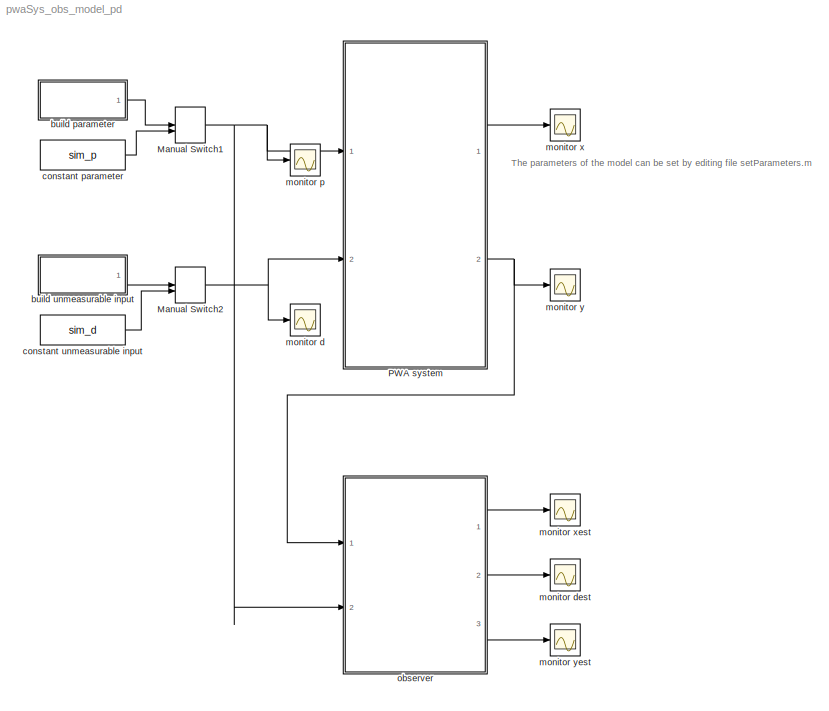
MODEL pwaSys_obs_model_pd
KIND model
CONFIG InitFcn = load simulink.mat\nsetParameters
CONFIG StartFcn = load simulink.mat\nsetParameters\nclear res_X res_U res_Y res_P res_D\nclear res_Xest res_Dest res_Yest
CONFIG StopFcn = plotScope
BLOCK [ManualSwitch] Manual Switch1
  CurrentSetting = 0
  SID = 31
BLOCK [ManualSwitch] Manual Switch2
  CurrentSetting = 0
  SID = 32
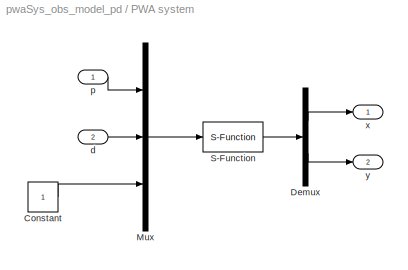
BLOCK [SubSystem] PWA system
  Ports = [2, 2]
  RequestExecContextInheritance = off
  SID = 5
  Variant = off
BLOCK [Constant] PWA system/Constant
  SID = 26
BLOCK [Demux] PWA system/Demux
  DisplayOption = bar
  Outputs = [sim_nx sim_ny]
  Ports = [1, 2]
  SID = 19
BLOCK [Mux] PWA system/Mux
  DisplayOption = bar
  Inputs = 3
  Ports = [3, 1]
  SID = 20
BLOCK [S-Function] PWA system/S-Function
  EnableBusSupport = off
  FunctionName = s_pwaSys_d
  Parameters = A,B,C,D,H,K,sim_x0,Ts
  Ports = [1, 1]
  SFunctionDeploymentMode = off
  SID = 74
BLOCK [Inport] PWA system/d
  IconDisplay = Port number
  Port = 2
  SID = 9
BLOCK [Inport] PWA system/p
  IconDisplay = Port number
  SID = 8
BLOCK [Outport] PWA system/x
  IconDisplay = Port number
  SID = 7
BLOCK [Outport] PWA system/y
  IconDisplay = Port number
  Port = 2
  SID = 10
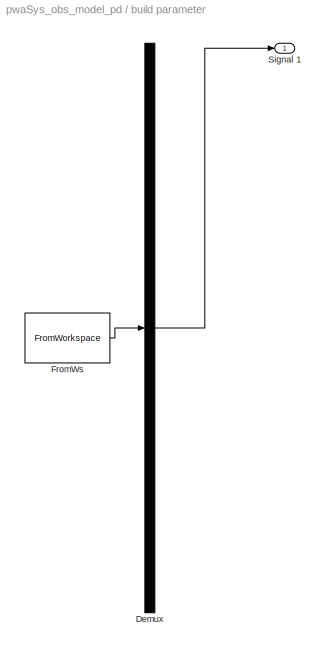
BLOCK [SubSystem] build parameter
  ClipboardFcn = sigbuilder_block('clipboard');
  CloseFcn = sigbuilder_block('close');
  ContinueFcn = sigbuilder_block('continue');
  CopyFcn = sigbuilder_block('copy');
  DeleteFcn = sigbuilder_block('delete');
  LoadFcn = sigbuilder_block('load');
  MaskHideContents = on
  ModelCloseFcn = sigbuilder_block('modelClose');
  NameChangeFcn = sigbuilder_block('namechange');
  OpenFcn = sigbuilder_block('open',[433.6 128 558.4 400.8 ]);
  PauseFcn = sigbuilder_block('pause');
  Ports = [0, 1]
  PreSaveFcn = sigbuilder_block('preSave');
  RequestExecContextInheritance = off
  SID = 12
  StartFcn = sigbuilder_block('start');
  StopFcn = sigbuilder_block('stop');
  Tag = STV Subsys
  Variant = off
BLOCK [Demux] build parameter/Demux
  Outputs = 1
  Ports = [1, 1]
  SID = 12:1
  Tag = STV Demux
BLOCK [FromWorkspace] build parameter/FromWs
  SID = 12:2
  SampleTime = 0
  SigBuilderData = DataTag0
  Tag = STV FromWs
  VariableName = tuvar
  VnvData = DataTag1
  ZeroCross = on
BLOCK [Outport] build parameter/Signal 1
  IconDisplay = Port number
  SID = 12:3
  Tag = STV Outport
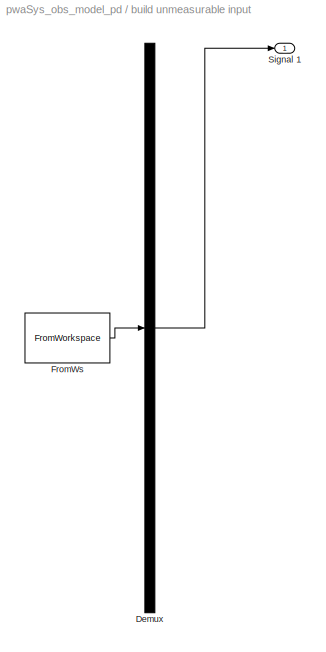
BLOCK [SubSystem] build unmeasurable input
  ClipboardFcn = sigbuilder_block('clipboard');
  CloseFcn = sigbuilder_block('close');
  ContinueFcn = sigbuilder_block('continue');
  CopyFcn = sigbuilder_block('copy');
  DeleteFcn = sigbuilder_block('delete');
  LoadFcn = sigbuilder_block('load');
  MaskHideContents = on
  ModelCloseFcn = sigbuilder_block('modelClose');
  NameChangeFcn = sigbuilder_block('namechange');
  OpenFcn = sigbuilder_block('open',[433.6 121.6 550.4 399.2 ]);
  PauseFcn = sigbuilder_block('pause');
  Ports = [0, 1]
  PreSaveFcn = sigbuilder_block('preSave');
  RequestExecContextInheritance = off
  SID = 13
  StartFcn = sigbuilder_block('start');
  StopFcn = sigbuilder_block('stop');
  Tag = STV Subsys
  Variant = off
BLOCK [Demux] build unmeasurable input/Demux
  Outputs = 1
  Ports = [1, 1]
  SID = 13:1
  Tag = STV Demux
BLOCK [FromWorkspace] build unmeasurable input/FromWs
  SID = 13:2
  SampleTime = 0
  SigBuilderData = DataTag2
  Tag = STV FromWs
  VariableName = tuvar
  VnvData = DataTag3
  ZeroCross = on
BLOCK [Outport] build unmeasurable input/Signal 1
  IconDisplay = Port number
  SID = 13:3
  Tag = STV Outport
BLOCK [Constant] constant parameter
  SID = 29
  Value = sim_p
BLOCK [Constant] constant unmeasurable input
  SID = 30
  Value = sim_d
BLOCK [Scope] monitor d
  Ports = [1]
  SID = 25
  ScopeSpecificationString = C++SS(StrPVP('Location','[188, 365, 502, 602]'),StrPVP('Open','off'),MxPVP('AxesTitles',24,'struct(''axes1'',''%<SignalLabel>'')'),MxPVP('ScopeGraphics',28,'struct(''FigureColor'',''[0.5 0.5 0.5]'',''AxesColor'',''[0 0 0]'',''AxesTickColor'',''[1 1 1]'',''LineColors'',''[1 1 0;1 0 1;0 1 1;1 0 0;0 1 0;0 0 1]'',''LineStyles'',''-|-|-|-|-|-'',''LineWidths'',''[0.5 0.5 0.5 0.5 0.5 0.5]'',''MarkerStyle...<+263ch>  <repeated x3 — deduplicated; at blocks: monitor d, monitor p, monitor y>
BLOCK [Scope] monitor dest
  Ports = [1]
  SID = 45
  ScopeSpecificationString = C++SS(StrPVP('Location','[188, 336, 502, 573]'),StrPVP('Open','off'),MxPVP('AxesTitles',24,'struct(''axes1'',''%<SignalLabel>'')'),MxPVP('ScopeGraphics',28,'struct(''FigureColor'',''[0.5 0.5 0.5]'',''AxesColor'',''[0 0 0]'',''AxesTickColor'',''[1 1 1]'',''LineColors'',''[1 1 0;1 0 1;0 1 1;1 0 0;0 1 0;0 0 1]'',''LineStyles'',''-|-|-|-|-|-'',''LineWidths'',''[0.5 0.5 0.5 0.5 0.5 0.5]'',''MarkerStyle...<+266ch>
BLOCK [Scope] monitor p
  Ports = [1]
  SID = 24
BLOCK [Scope] monitor x
  Ports = [1]
  SID = 16
  ScopeSpecificationString = C++SS(StrPVP('Location','[188, 364, 512, 603]'),StrPVP('Open','off'),MxPVP('AxesTitles',24,'struct(''axes1'',''%<SignalLabel>'')'),MxPVP('ScopeGraphics',28,'struct(''FigureColor'',''[0.5 0.5 0.5]'',''AxesColor'',''[0 0 0]'',''AxesTickColor'',''[1 1 1]'',''LineColors'',''[1 1 0;1 0 1;0 1 1;1 0 0;0 1 0;0 0 1]'',''LineStyles'',''-|-|-|-|-|-'',''LineWidths'',''[0.5 0.5 0.5 0.5 0.5 0.5]'',''MarkerStyle...<+263ch>
BLOCK [Scope] monitor xest
  Ports = [1]
  SID = 44
  ScopeSpecificationString = C++SS(StrPVP('Location','[188, 364, 512, 603]'),StrPVP('Open','off'),MxPVP('AxesTitles',24,'struct(''axes1'',''%<SignalLabel>'')'),MxPVP('ScopeGraphics',28,'struct(''FigureColor'',''[0.5 0.5 0.5]'',''AxesColor'',''[0 0 0]'',''AxesTickColor'',''[1 1 1]'',''LineColors'',''[1 1 0;1 0 1;0 1 1;1 0 0;0 1 0;0 0 1]'',''LineStyles'',''-|-|-|-|-|-'',''LineWidths'',''[0.5 0.5 0.5 0.5 0.5 0.5]'',''MarkerStyle...<+266ch>
BLOCK [Scope] monitor y
  Ports = [1]
  SID = 17
BLOCK [Scope] monitor yest
  Ports = [1]
  SID = 46
  ScopeSpecificationString = C++SS(StrPVP('Location','[188, 364, 512, 603]'),StrPVP('Open','off'),MxPVP('AxesTitles',24,'struct(''axes1'',''%<SignalLabel>'')'),MxPVP('ScopeGraphics',28,'struct(''FigureColor'',''[0.5 0.5 0.5]'',''AxesColor'',''[0 0 0]'',''AxesTickColor'',''[1 1 1]'',''LineColors'',''[1 1 0;1 0 1;0 1 1;1 0 0;0 1 0;0 0 1]'',''LineStyles'',''-|-|-|-|-|-'',''LineWidths'',''[0.5 0.5 0.5 0.5 0.5 0.5]'',''MarkerStyle...<+266ch>
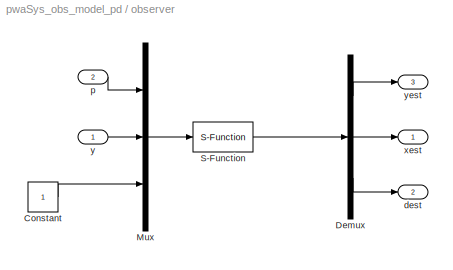
BLOCK [SubSystem] observer
  Ports = [2, 3]
  RequestExecContextInheritance = off
  SID = 59
  Variant = off
BLOCK [Constant] observer/Constant
  SID = 63
BLOCK [Demux] observer/Demux
  DisplayOption = bar
  Outputs = [sim_ny sim_nx sim_nd]
  Ports = [1, 3]
  SID = 64
BLOCK [Mux] observer/Mux
  DisplayOption = bar
  Inputs = 3
  Ports = [3, 1]
  SID = 66
BLOCK [S-Function] observer/S-Function
  EnableBusSupport = off
  FunctionName = s_pwaSys_d
  Parameters = A,B,C,D,H,K,sim_x0,Ts
  Ports = [1, 1]
  SFunctionDeploymentMode = off
  SID = 73
BLOCK [Outport] observer/dest
  IconDisplay = Port number
  Port = 2
  SID = 68
BLOCK [Inport] observer/p
  IconDisplay = Port number
  Port = 2
  SID = 62
BLOCK [Outport] observer/xest
  IconDisplay = Port number
  SID = 67
BLOCK [Inport] observer/y
  IconDisplay = Port number
  SID = 60
BLOCK [Outport] observer/yest
  IconDisplay = Port number
  Port = 3
  SID = 69
ANNOTATION (root): \n \n
ANNOTATION (root): \n \n The parameters of the model can be set by editing file setParameters.m \n \n You can generate custom signals for system inputs (u), parameters (p) and \n unmeasurable inputs (d), or you can set them constant (choose with the \n orange switches) \n \n The simulation results are also saved in MATLAB workspace as variables \n res_X, res_Y, res_U, res_P, res_D, res_Xest, res_Yest and res_Dest an...<+26ch>
NET Manual Switch1:1 -> PWA system:1, monitor p:1, observer:2
NET Manual Switch2:1 -> PWA system:2, monitor d:1
LINE PWA system/Constant:1 -> PWA system/Mux:3
LINE PWA system/Demux:1 -> PWA system/x:1
LINE PWA system/Demux:2 -> PWA system/y:1
LINE PWA system/Mux:1 -> PWA system/S-Function:1
LINE PWA system/S-Function:1 -> PWA system/Demux:1
LINE PWA system/d:1 -> PWA system/Mux:2
LINE PWA system/p:1 -> PWA system/Mux:1
LINE PWA system:1 -> monitor x:1
NET PWA system:2 -> monitor y:1, observer:1
LINE build parameter/Demux:1 -> build parameter/Signal 1:1
LINE build parameter/FromWs:1 -> build parameter/Demux:1
LINE build parameter:1 -> Manual Switch1:1
LINE build unmeasurable input/Demux:1 -> build unmeasurable input/Signal 1:1
LINE build unmeasurable input/FromWs:1 -> build unmeasurable input/Demux:1
LINE build unmeasurable input:1 -> Manual Switch2:1
LINE constant parameter:1 -> Manual Switch1:2
LINE constant unmeasurable input:1 -> Manual Switch2:2
LINE observer/Constant:1 -> observer/Mux:3
LINE observer/Demux:1 -> observer/yest:1
LINE observer/Demux:2 -> observer/xest:1
LINE observer/Demux:3 -> observer/dest:1
LINE observer/Mux:1 -> observer/S-Function:1
LINE observer/S-Function:1 -> observer/Demux:1
LINE observer/p:1 -> observer/Mux:1
LINE observer/y:1 -> observer/Mux:2
LINE observer:1 -> monitor xest:1
LINE observer:2 -> monitor dest:1
LINE observer:3 -> monitor yest:1
note: NET lines group one-source signal fan-out (src -> all destinations, sorted); 1:1 wires keep LINE
